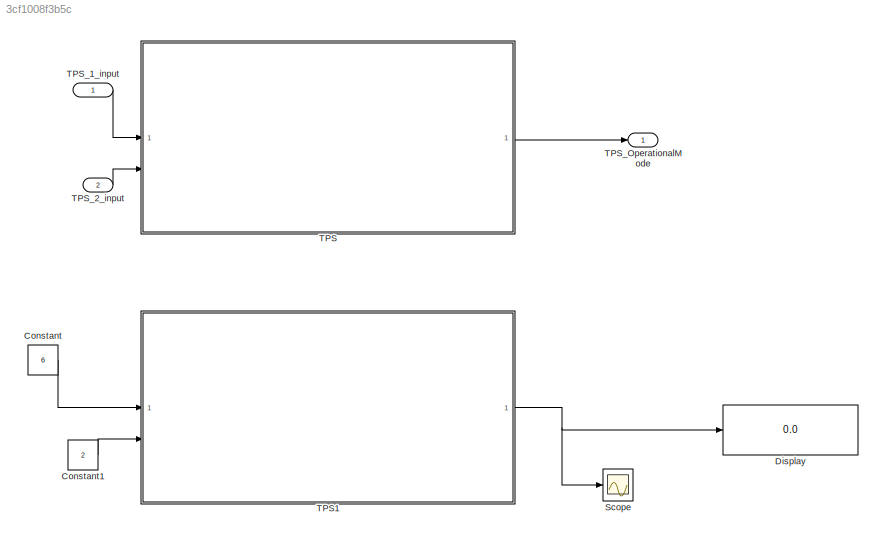
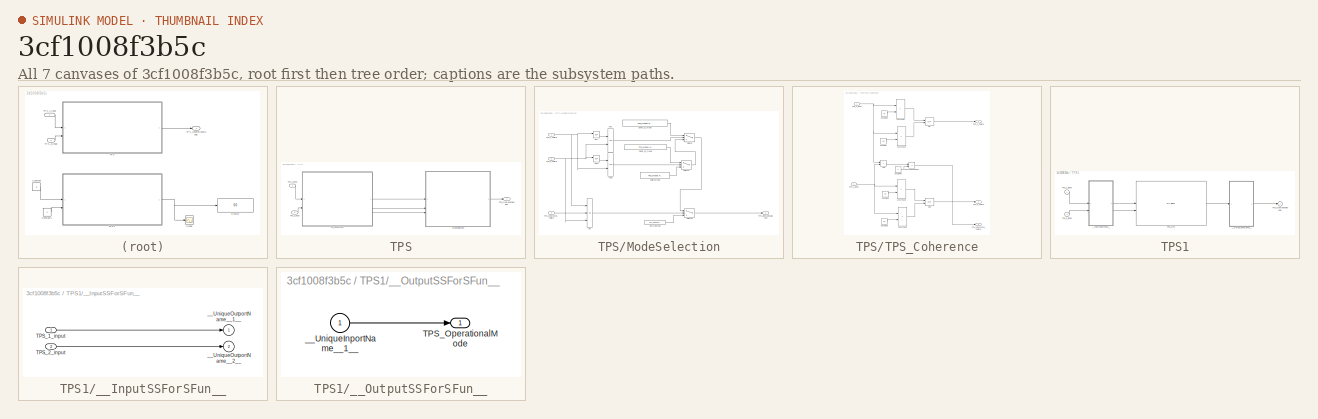
[diagram: thumbnail index - all 7 canvases of the model, root first then tree order]
MODEL slx_3cf1008f3b5c
KIND model
CONFIG AbsTol = auto
CONFIG EnableMultiTasking = off
CONFIG FixedStep = auto
CONFIG MaxStep = auto
CONFIG MinStep = auto
CONFIG RelTol = 1e-3
CONFIG SampleTimeConstraint = Unconstrained
CONFIG SolverName = FixedStepAuto
CONFIG StartTime = 0.0
CONFIG StopTime = 10.0
BLOCK [Constant] Constant
  OutDataTypeStr = Inherit: Inherit via back propagation
  Value = 6
BLOCK [Constant] Constant1
  OutDataTypeStr = Inherit: Inherit via back propagation
  Value = 2
BLOCK [Display] Display
  Decimation = 1
BLOCK [Scope] Scope
  Floating = off
  NumInputPorts = 1
  ScopeSpecificationString = Simulink.scopes.TimeScopeBlockCfg('CurrentConfiguration', extmgr.ConfigurationSet(extmgr.Configuration('Core','General UI',true),extmgr.Configuration('Core','Source UI',true),extmgr.Configuration('Sources','WiredSimulink',true),extmgr.Configuration('Visuals','Time Domain',true,'SerializedDisplays',{struct('MinYLimReal','1.00000','MaxYLimReal','3.00000','YLabelReal','','MinYLimMag','1.00000','MaxYL...<+1347ch>
BLOCK [SubSystem] TPS
  TreatAsAtomicUnit = on
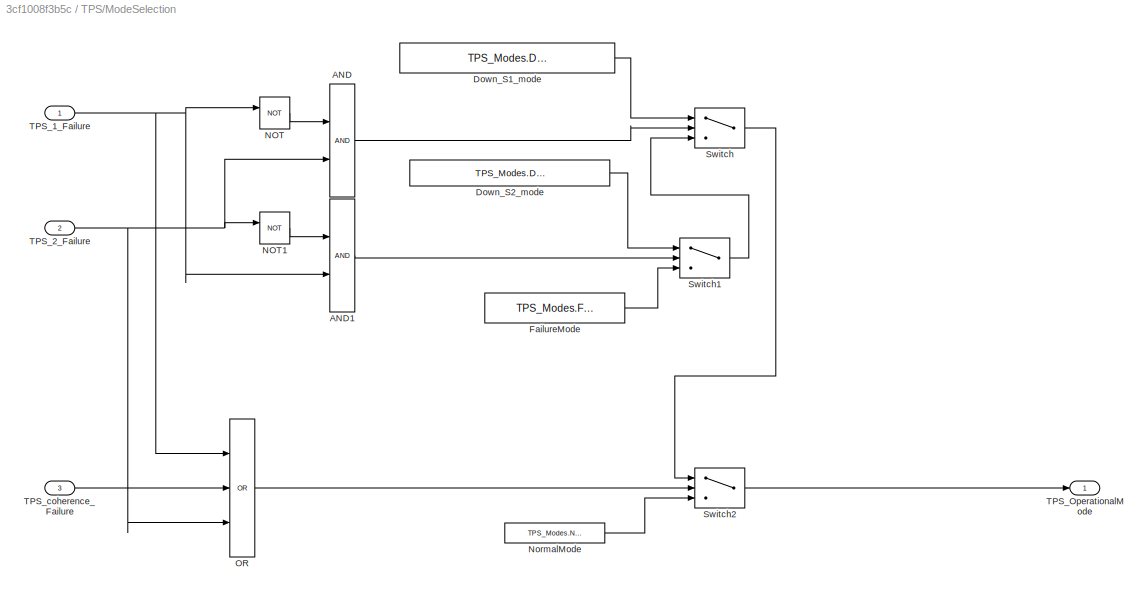
BLOCK [SubSystem] TPS/ModeSelection
BLOCK [Logic] TPS/ModeSelection/AND
  AllPortsSameDT = off
  OutDataTypeStr = boolean
BLOCK [Logic] TPS/ModeSelection/AND1
  AllPortsSameDT = off
  OutDataTypeStr = boolean
BLOCK [Constant] TPS/ModeSelection/Down_S1_mode
  Value = TPS_Modes.Downgraded_sen1_mode
BLOCK [Constant] TPS/ModeSelection/Down_S2_mode
  Value = TPS_Modes.Downgraded_sen2_mode
BLOCK [Constant] TPS/ModeSelection/FailureMode
  Value = TPS_Modes.Failure_mode
BLOCK [Logic] TPS/ModeSelection/NOT
  AllPortsSameDT = off
  Operator = NOT
  OutDataTypeStr = boolean
BLOCK [Logic] TPS/ModeSelection/NOT1
  AllPortsSameDT = off
  Operator = NOT
  OutDataTypeStr = boolean
BLOCK [Constant] TPS/ModeSelection/NormalMode
  Value = TPS_Modes.Normal
BLOCK [Logic] TPS/ModeSelection/OR
  AllPortsSameDT = off
  Inputs = 3
  Operator = OR
  OutDataTypeStr = boolean
BLOCK [Switch] TPS/ModeSelection/Switch
  Criteria = u2 ~= 0
  InputSameDT = off
  SaturateOnIntegerOverflow = off
BLOCK [Switch] TPS/ModeSelection/Switch1
  Criteria = u2 ~= 0
  InputSameDT = off
  SaturateOnIntegerOverflow = off
BLOCK [Switch] TPS/ModeSelection/Switch2
  Criteria = u2 ~= 0
  InputSameDT = off
  SaturateOnIntegerOverflow = off
BLOCK [Inport] TPS/ModeSelection/TPS_1_Failure
  OutDataTypeStr = boolean
BLOCK [Inport] TPS/ModeSelection/TPS_2_Failure
  OutDataTypeStr = boolean
  Port = 2
BLOCK [Outport] TPS/ModeSelection/TPS_OperationalMode
BLOCK [Inport] TPS/ModeSelection/TPS_coherence_Failure
  OutDataTypeStr = boolean
  Port = 3
BLOCK [Inport] TPS/TPS_1_input
  OutDataTypeStr = single
BLOCK [Inport] TPS/TPS_2_input
  OutDataTypeStr = single
  Port = 2
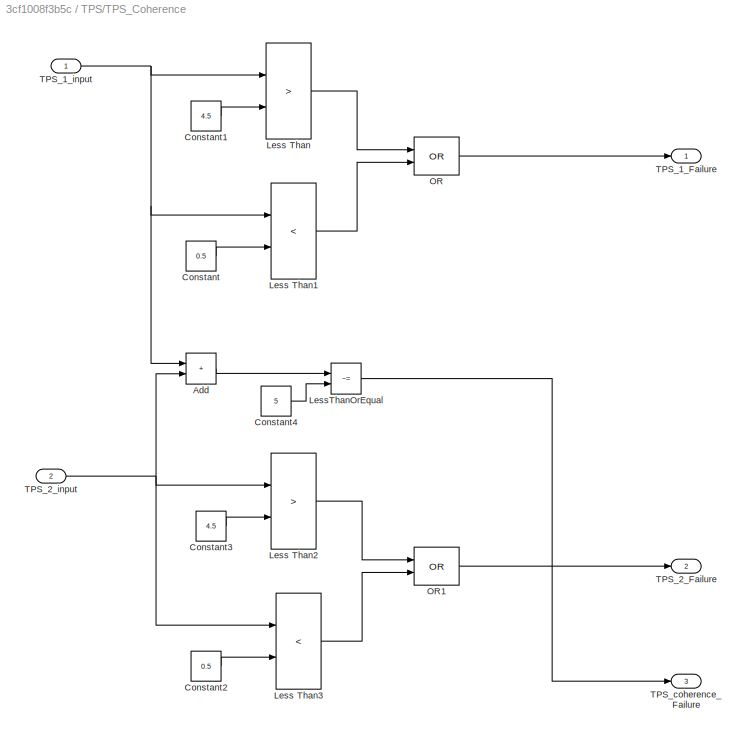
BLOCK [SubSystem] TPS/TPS_Coherence
BLOCK [Sum] TPS/TPS_Coherence/Add
  IconShape = rectangular
BLOCK [Constant] TPS/TPS_Coherence/Constant
  Value = 0.5
BLOCK [Constant] TPS/TPS_Coherence/Constant1
  Value = 4.5
BLOCK [Constant] TPS/TPS_Coherence/Constant2
  Value = 0.5
BLOCK [Constant] TPS/TPS_Coherence/Constant3
  Value = 4.5
BLOCK [Constant] TPS/TPS_Coherence/Constant4
  Value = 5
BLOCK [RelationalOperator] TPS/TPS_Coherence/Less Than
  InputSameDT = off
  Operator = >
  OutDataTypeStr = boolean
  RndMeth = Simplest
BLOCK [RelationalOperator] TPS/TPS_Coherence/Less Than1
  InputSameDT = off
  Operator = <
  OutDataTypeStr = boolean
  RndMeth = Simplest
BLOCK [RelationalOperator] TPS/TPS_Coherence/Less Than2
  InputSameDT = off
  Operator = >
  OutDataTypeStr = boolean
  RndMeth = Simplest
BLOCK [RelationalOperator] TPS/TPS_Coherence/Less Than3
  InputSameDT = off
  Operator = <
  OutDataTypeStr = boolean
  RndMeth = Simplest
BLOCK [RelationalOperator] TPS/TPS_Coherence/LessThanOrEqual
  InputSameDT = off
  Operator = ~=
  OutDataTypeStr = boolean
  RndMeth = Simplest
BLOCK [Logic] TPS/TPS_Coherence/OR
  AllPortsSameDT = off
  IconShape = distinctive
  Operator = OR
  OutDataTypeStr = boolean
BLOCK [Logic] TPS/TPS_Coherence/OR1
  AllPortsSameDT = off
  IconShape = distinctive
  Operator = OR
  OutDataTypeStr = boolean
BLOCK [Outport] TPS/TPS_Coherence/TPS_1_Failure
  OutDataTypeStr = boolean
BLOCK [Inport] TPS/TPS_Coherence/TPS_1_input
  OutDataTypeStr = single
BLOCK [Outport] TPS/TPS_Coherence/TPS_2_Failure
  OutDataTypeStr = boolean
  Port = 2
BLOCK [Inport] TPS/TPS_Coherence/TPS_2_input
  OutDataTypeStr = single
  Port = 2
BLOCK [Outport] TPS/TPS_Coherence/TPS_coherence_Failure
  OutDataTypeStr = boolean
  Port = 3
BLOCK [Outport] TPS/TPS_OperationalMode
BLOCK [SubSystem] TPS1
  DialogController = pil_create_dialog
  LoadFcn = try\n   if ~strcmp(rtw.pil.getPILVersion, '9.14 (R2023a)_15')\n      set_param(gcb, 'DialogController', '');\n      set_param(gcb, 'DialogControllerArgs', '');\n   end\ncatch e\n      set_param(gcb, 'DialogController', '');\n      set_param(gcb, 'DialogControllerArgs', '');\nend
  Tag = __SL_testing_harness_stub_
BLOCK [Inport] TPS1/TPS_1_input
  OutDataTypeStr = single
BLOCK [Inport] TPS1/TPS_2_input
  OutDataTypeStr = single
  Port = 2
BLOCK [Outport] TPS1/TPS_OperationalMode
BLOCK [Reference] TPS1/TPS_sfcn  REF=pil_lib/PIL Block
  SourceBlock = pil_lib/PIL Block
  SourceType = XILBlock
BLOCK [SubSystem] TPS1/__InputSSForSFun__
  PermitHierarchicalResolution = ExplicitOnly
BLOCK [Inport] TPS1/__InputSSForSFun__/TPS_1_input
  OutDataTypeStr = single
BLOCK [Inport] TPS1/__InputSSForSFun__/TPS_2_input
  OutDataTypeStr = single
  Port = 2
BLOCK [Outport] TPS1/__InputSSForSFun__/__UniqueOutportName__1__
BLOCK [Outport] TPS1/__InputSSForSFun__/__UniqueOutportName__2__
  Port = 2
BLOCK [SubSystem] TPS1/__OutputSSForSFun__
  PermitHierarchicalResolution = ExplicitOnly
BLOCK [Outport] TPS1/__OutputSSForSFun__/TPS_OperationalMode
BLOCK [Inport] TPS1/__OutputSSForSFun__/__UniqueInportName__1__
BLOCK [Inport] TPS_1_input
BLOCK [Inport] TPS_2_input
  Port = 2
BLOCK [Outport] TPS_OperationalMode
LINE Constant1:1 -> TPS1:2
LINE Constant:1 -> TPS1:1
LINE TPS/ModeSelection/AND1:1 -> TPS/ModeSelection/Switch1:2
LINE TPS/ModeSelection/AND:1 -> TPS/ModeSelection/Switch:2
LINE TPS/ModeSelection/Down_S1_mode:1 -> TPS/ModeSelection/Switch:1
LINE TPS/ModeSelection/Down_S2_mode:1 -> TPS/ModeSelection/Switch1:1
LINE TPS/ModeSelection/FailureMode:1 -> TPS/ModeSelection/Switch1:3
LINE TPS/ModeSelection/NOT1:1 -> TPS/ModeSelection/AND1:1
LINE TPS/ModeSelection/NOT:1 -> TPS/ModeSelection/AND:1
LINE TPS/ModeSelection/NormalMode:1 -> TPS/ModeSelection/Switch2:3
LINE TPS/ModeSelection/OR:1 -> TPS/ModeSelection/Switch2:2
LINE TPS/ModeSelection/Switch1:1 -> TPS/ModeSelection/Switch:3
LINE TPS/ModeSelection/Switch2:1 -> TPS/ModeSelection/TPS_OperationalMode:1
LINE TPS/ModeSelection/Switch:1 -> TPS/ModeSelection/Switch2:1
NET TPS/ModeSelection/TPS_1_Failure:1 -> TPS/ModeSelection/AND1:2, TPS/ModeSelection/NOT:1, TPS/ModeSelection/OR:1
NET TPS/ModeSelection/TPS_2_Failure:1 -> TPS/ModeSelection/AND:2, TPS/ModeSelection/NOT1:1, TPS/ModeSelection/OR:3
LINE TPS/ModeSelection/TPS_coherence_Failure:1 -> TPS/ModeSelection/OR:2
LINE TPS/ModeSelection:1 -> TPS/TPS_OperationalMode:1
LINE TPS/TPS_1_input:1 -> TPS/TPS_Coherence:1
LINE TPS/TPS_2_input:1 -> TPS/TPS_Coherence:2
LINE TPS/TPS_Coherence/Add:1 -> TPS/TPS_Coherence/LessThanOrEqual:1
LINE TPS/TPS_Coherence/Constant1:1 -> TPS/TPS_Coherence/Less Than:2
LINE TPS/TPS_Coherence/Constant2:1 -> TPS/TPS_Coherence/Less Than3:2
LINE TPS/TPS_Coherence/Constant3:1 -> TPS/TPS_Coherence/Less Than2:2
LINE TPS/TPS_Coherence/Constant4:1 -> TPS/TPS_Coherence/LessThanOrEqual:2
LINE TPS/TPS_Coherence/Constant:1 -> TPS/TPS_Coherence/Less Than1:2
LINE TPS/TPS_Coherence/Less Than1:1 -> TPS/TPS_Coherence/OR:2
LINE TPS/TPS_Coherence/Less Than2:1 -> TPS/TPS_Coherence/OR1:1
LINE TPS/TPS_Coherence/Less Than3:1 -> TPS/TPS_Coherence/OR1:2
LINE TPS/TPS_Coherence/Less Than:1 -> TPS/TPS_Coherence/OR:1
LINE TPS/TPS_Coherence/LessThanOrEqual:1 -> TPS/TPS_Coherence/TPS_coherence_Failure:1
LINE TPS/TPS_Coherence/OR1:1 -> TPS/TPS_Coherence/TPS_2_Failure:1
LINE TPS/TPS_Coherence/OR:1 -> TPS/TPS_Coherence/TPS_1_Failure:1
NET TPS/TPS_Coherence/TPS_1_input:1 -> TPS/TPS_Coherence/Add:1, TPS/TPS_Coherence/Less Than1:1, TPS/TPS_Coherence/Less Than:1
NET TPS/TPS_Coherence/TPS_2_input:1 -> TPS/TPS_Coherence/Add:2, TPS/TPS_Coherence/Less Than2:1, TPS/TPS_Coherence/Less Than3:1
LINE TPS/TPS_Coherence:1 -> TPS/ModeSelection:1
LINE TPS/TPS_Coherence:2 -> TPS/ModeSelection:2
LINE TPS/TPS_Coherence:3 -> TPS/ModeSelection:3
NET TPS1:1 -> Display:1, Scope:1
LINE TPS:1 -> TPS_OperationalMode:1
LINE TPS_1_input:1 -> TPS:1
LINE TPS_2_input:1 -> TPS:2
note: NET lines group one-source signal fan-out (src -> all destinations, sorted); 1:1 wires keep LINE
